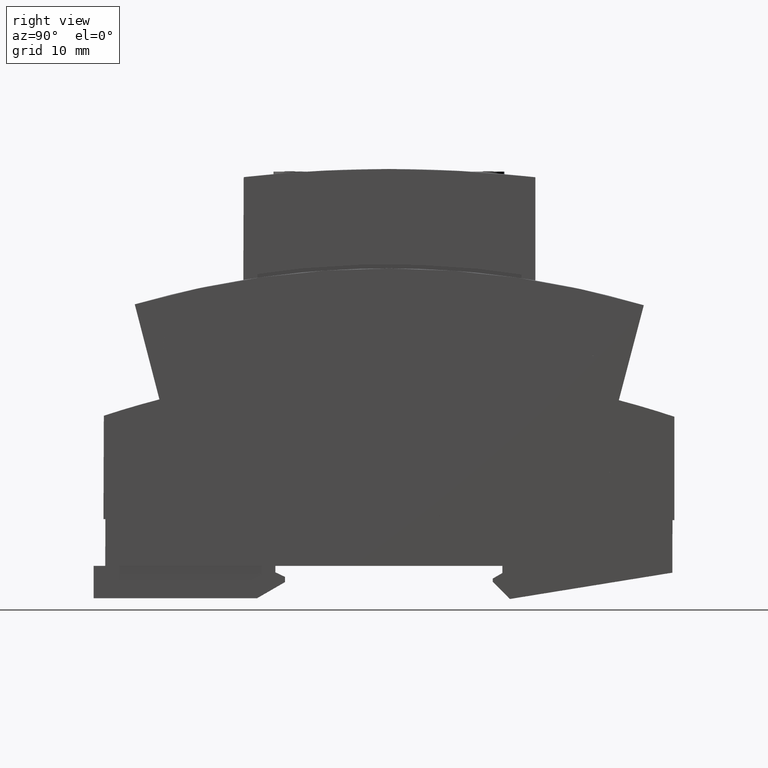
[diagram: clean part render]
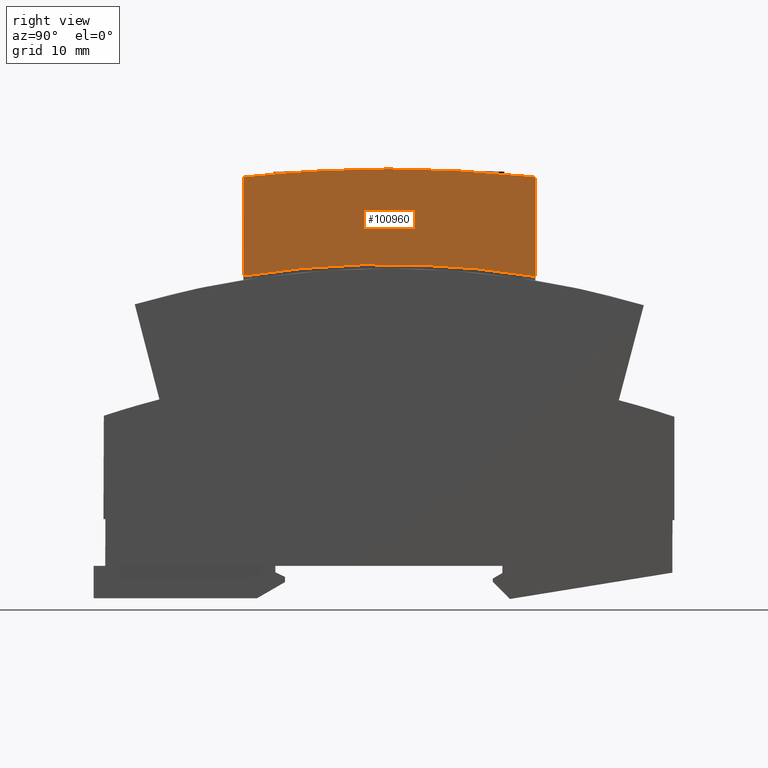
[diagram: same view with one face highlighted and labeled with its STEP entity id]
A machine part, right view. The second image highlights one B-rep face of the part: STEP entity #100960.
In plain terms, the highlighted planar face has unit normal (1, -0, -0).
Its self-contained STEP definition (entity closure, byte-faithful):
#51450=CARTESIAN_POINT('',(-39.875644720519,59.9043663447041,17.5));
#51460=VERTEX_POINT('',#51450);
#51490=CARTESIAN_POINT('',(-40.0012895095302,23.9099318984209,17.5));
#51500=DIRECTION('',(-0.00349065141522469,-0.99999390765779,
-1.73472347597681E-18));
#51510=VECTOR('',#51500,1.);
#51520=LINE('',#51490,#51510);
#51530=CARTESIAN_POINT('',(-39.9288142634434,44.6724761692924,17.5));
#51540=VERTEX_POINT('',#51530);
#51550=EDGE_CURVE('',#51460,#51540,#51520,.T.);
#62000=CARTESIAN_POINT('',(-17.4845967167556,61.1580974394405,17.5));
#62010=VERTEX_POINT('',#62000);
#62040=CARTESIAN_POINT('',(154.280844406757,61.158091567358,17.5));
#62050=CARTESIAN_POINT('',(144.771787865585,61.1580918924406,17.5));
#62060=CARTESIAN_POINT('',(135.262731324412,61.1580922175233,17.5));
#62070=CARTESIAN_POINT('',(116.250572891361,61.158092867485,17.5));
#62080=CARTESIAN_POINT('',(106.747470999481,61.1580931923641,17.5));
#62090=CARTESIAN_POINT('',(59.0013804994831,61.1580948246423,17.5));
#62100=CARTESIAN_POINT('',(20.7583918913638,61.1580961320414,17.5));
#62110=CARTESIAN_POINT('',(-24.5764013397725,61.1580976818854,17.5));
#62120=CARTESIAN_POINT('',(-31.6631882343078,60.7809522745125,17.5));
#62130=CARTESIAN_POINT('',(-76.7419121579807,55.9693133706651,17.5));
#62140=CARTESIAN_POINT('',(-114.768891233554,51.9103676865408,17.5));
#62150=CARTESIAN_POINT('',(-162.245295418095,46.8428038003955,17.5));
#62160=CARTESIAN_POINT('',(-171.694720527062,45.8341855983744,17.5));
#62170=CARTESIAN_POINT('',(-190.599491760387,43.8163171935673,17.5));
#62180=CARTESIAN_POINT('',(-200.054837884744,42.8070669907813,17.5));
#62190=CARTESIAN_POINT('',(-209.510184009101,41.7978167879953,17.5));
#62200=B_SPLINE_CURVE_WITH_KNOTS('',3,(#62040,#62050,#62060,#62070,
#62080,#62090,#62100,#62110,#62120,#62130,#62140,#62150,#62160,#62170,
#62180,#62190),.UNSPECIFIED.,.F.,.F.,(4,2,2,2,2,2,2,4),(
-8.07342419662033,-6.73257274249117,-5.3925609405535,0.,1.,
6.39256310242424,7.73257544157093,9.07342743324572),.UNSPECIFIED.);
#62210=EDGE_CURVE('',#62010,#51460,#62200,.T.);
#85350=CARTESIAN_POINT('',(5.06898951839833,59.8870171728506,17.5));
#85360=VERTEX_POINT('',#85350);
#85390=CARTESIAN_POINT('',(163.605399881628,42.9650651599592,17.5));
#85400=CARTESIAN_POINT('',(154.160425600065,43.9732083441616,17.5));
#85410=CARTESIAN_POINT('',(144.715451318501,44.981351528364,17.5));
#85420=CARTESIAN_POINT('',(129.455876721617,46.6101369188872,17.5));
#85430=CARTESIAN_POINT('',(123.641276406296,47.230779125208,17.5));
#85440=CARTESIAN_POINT('',(79.7996970765649,51.9103672393031,17.5));
#85450=CARTESIAN_POINT('',(41.7727180621554,55.9693131470774,17.5));
#85460=CARTESIAN_POINT('',(-3.30600540006662,60.7809522745333,17.5));
#85470=CARTESIAN_POINT('',(-10.3927920939344,61.1580976818854,17.5));
#85480=CARTESIAN_POINT('',(-55.7275852877941,61.1580961320417,17.5));
#85490=CARTESIAN_POINT('',(-93.9705738588324,61.1580948246429,17.5));
#85500=CARTESIAN_POINT('',(-138.061192169791,61.1580933173333,17.5));
#85510=CARTESIAN_POINT('',(-143.908821909711,61.1580931174225,17.5));
#85520=CARTESIAN_POINT('',(-159.255077437568,61.1580925927858,17.5));
#85530=CARTESIAN_POINT('',(-168.753703225504,61.1580922680598,17.5));
#85540=CARTESIAN_POINT('',(-178.25232901344,61.1580919433338,17.5));
#85550=B_SPLINE_CURVE_WITH_KNOTS('',3,(#85390,#85400,#85410,#85420,
#85430,#85440,#85450,#85460,#85470,#85480,#85490,#85500,#85510,#85520,
#85530,#85540),.UNSPECIFIED.,.F.,.F.,(4,2,2,2,2,2,2,4),(-7.5565066212551
,-6.21712537290409,-5.39256339985572,0.,1.,6.39256093547402,
7.21712253170059,8.55650316795928),.UNSPECIFIED.);
#85560=CARTESIAN_POINT('',(3.7457390477458,60.0282590548518,17.5));
#85570=VERTEX_POINT('',#85560);
#85580=EDGE_CURVE('',#85360,#85570,#85550,.T.);
#85600=CARTESIAN_POINT('',(117.826676090974,47.8514213315287,17.5));
#85610=CARTESIAN_POINT('',(79.7996970765649,51.9103672393031,17.5));
#85620=CARTESIAN_POINT('',(41.7727180621554,55.9693131470774,17.5));
#85630=CARTESIAN_POINT('',(-3.3060054000667,60.7809522745333,17.5));
#85640=CARTESIAN_POINT('',(-10.3927920939345,61.1580976818854,17.5));
#85650=CARTESIAN_POINT('',(-55.727585287794,61.1580961320417,17.5));
#85660=CARTESIAN_POINT('',(-93.9705738588324,61.1580948246429,17.5));
#85670=CARTESIAN_POINT('',(-132.213562429871,61.158093517244,17.5));
#85680=B_SPLINE_CURVE_WITH_KNOTS('',3,(#85600,#85610,#85620,#85630,
#85640,#85650,#85660,#85670),.UNSPECIFIED.,.F.,.F.,(4,2,2,4),(
-5.39256339985572,0.,1.,6.39256093547402),.UNSPECIFIED.);
#85690=EDGE_CURVE('',#85570,#62010,#85680,.T.);
#100220=CARTESIAN_POINT('',(5.06898951839839,44.5939401063317,17.5));
#100230=VERTEX_POINT('',#100220);
#100260=CARTESIAN_POINT('',(5.06898951839838,23.9099318984209,17.5));
#100270=DIRECTION('',(2.90783022660612E-16,-1.,-1.81495672425259E-18));
#100280=VECTOR('',#100270,1.);
#100290=LINE('',#100260,#100280);
#100300=EDGE_CURVE('',#85360,#100230,#100290,.T.);
#100770=CARTESIAN_POINT('',(-68.4665739127965,8.11269272985266,17.5));
#100780=DIRECTION('',(-1.1179208139503E-20,-1.81495672425262E-18,1.));
#100790=DIRECTION('',(0.999998476913288,-0.00174532836589864,
8.01149565888308E-21));
#100800=AXIS2_PLACEMENT_3D('',#100770,#100780,#100790);
#100810=PLANE('',#100800);
#100820=CARTESIAN_POINT('',(-17.6710823859108,-93.5468906780054,17.5));
#100830=DIRECTION('',(-1.35525271563154E-20,-1.81496661283925E-18,1.));
#100840=DIRECTION('',(-0.999998476913288,0.00174532836589861,
-1.03847938020941E-20));
#100850=AXIS2_PLACEMENT_3D('',#100820,#100830,#100840);
#100860=CIRCLE('',#100850,140.);
#100870=EDGE_CURVE('',#100230,#51540,#100860,.T.);
#100880=ORIENTED_EDGE('',*,*,#100870,.F.);
#100890=ORIENTED_EDGE('',*,*,#51550,.T.);
#100900=ORIENTED_EDGE('',*,*,#62210,.T.);
#100910=ORIENTED_EDGE('',*,*,#85690,.T.);
#100920=ORIENTED_EDGE('',*,*,#85580,.T.);
#100930=ORIENTED_EDGE('',*,*,#100300,.F.);
#100940=EDGE_LOOP('',(#100930,#100920,#100910,#100900,#100890,#100880));
#100950=FACE_OUTER_BOUND('',#100940,.T.);
#100960=ADVANCED_FACE('',(#100950),#100810,.T.);